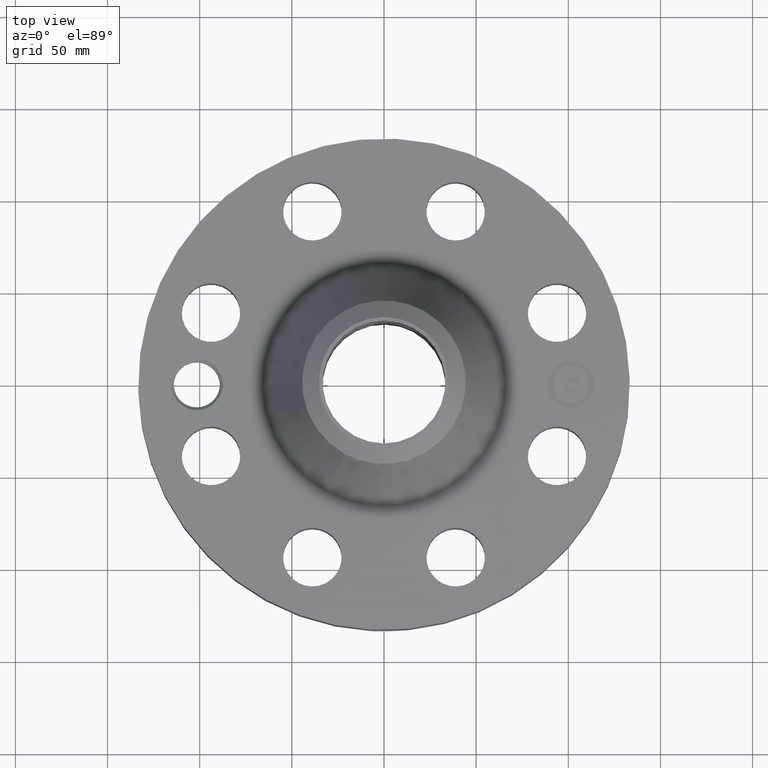
[diagram: clean part render]
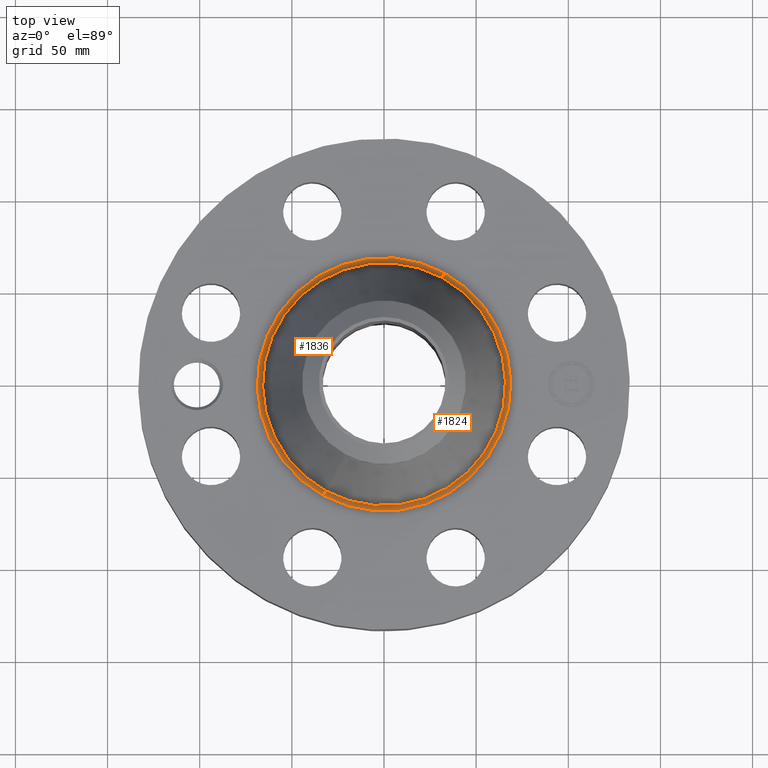
[diagram: same view with one multi-face feature highlighted, each face labeled with its STEP entity id]
A machine part, top view. The highlighted faces form ONE feature: a constant-radius fillet chain: 2 tangent blend faces with common blend radius 3.048 mm. The faces share edges in the B-rep.
Their STEP definitions:
[1] entity #1824 (Torus):
#582=AXIS2_PLACEMENT_3D('Circle Axis2P3D',#580,#581,$) ;
#1797=AXIS2_PLACEMENT_3D('Torus Axis2P3D',#1794,#1795,#1796) ;
#1801=AXIS2_PLACEMENT_3D('Circle Axis2P3D',#1799,#1800,$) ;
#1808=AXIS2_PLACEMENT_3D('Circle Axis2P3D',#1806,#1807,$) ;
#1815=AXIS2_PLACEMENT_3D('Circle Axis2P3D',#1813,#1814,$) ;
#575=CARTESIAN_POINT('Vertex',(-1.29770734833,-2.37543736749,2.13000000001)) ;
#577=CARTESIAN_POINT('Vertex',(1.29770734833,2.37543736749,2.13000000001)) ;
#580=CARTESIAN_POINT('Axis2P3D Location',(0.,0.,2.13000000001)) ;
#1794=CARTESIAN_POINT('Axis2P3D Location',(0.,0.,2.25000000001)) ;
#1799=CARTESIAN_POINT('Axis2P3D Location',(1.29770734833,2.37543736749,2.25000000001)) ;
#1803=CARTESIAN_POINT('Vertex',(1.24415753478,2.27741509129,2.20613599613)) ;
#1806=CARTESIAN_POINT('Axis2P3D Location',(0.,0.,2.20613599613)) ;
#1810=CARTESIAN_POINT('Vertex',(-1.24415753478,-2.27741509129,2.20613599613)) ;
#1813=CARTESIAN_POINT('Axis2P3D Location',(-1.29770734833,-2.37543736749,2.25000000001)) ;
#581=DIRECTION('Axis2P3D Direction',(0.,0.,-0.0393700787402)) ;
#1795=DIRECTION('Axis2P3D Direction',(0.,0.,-0.0393700787402)) ;
#1796=DIRECTION('Axis2P3D XDirection',(-0.0188750212049,-0.0345504945626,0.)) ;
#1800=DIRECTION('Axis2P3D Direction',(-0.0345504945626,0.0188750212049,0.)) ;
#1807=DIRECTION('Axis2P3D Direction',(0.,0.,-0.0393700787402)) ;
#1814=DIRECTION('Axis2P3D Direction',(0.0345504945626,-0.0188750212049,0.)) ;
#1819=ORIENTED_EDGE('',*,*,#584,.F.) ;
#1820=ORIENTED_EDGE('',*,*,#1805,.T.) ;
#1821=ORIENTED_EDGE('',*,*,#1812,.T.) ;
#1822=ORIENTED_EDGE('',*,*,#1817,.F.) ;
#1824=ADVANCED_FACE('PartBody',(#1823),#1798,.F.) ;
#583=CIRCLE('generated circle',#582,2.706796455) ;
#1802=CIRCLE('generated circle',#1801,0.12) ;
#1809=CIRCLE('generated circle',#1808,2.59510066652) ;
#1816=CIRCLE('generated circle',#1815,0.12) ;
#1798=TOROIDAL_SURFACE('homeo Torus',#1797,2.706796455,0.12) ;
#584=EDGE_CURVE('',#578,#576,#583,.T.) ;
#1805=EDGE_CURVE('',#578,#1804,#1802,.T.) ;
#1812=EDGE_CURVE('',#1804,#1811,#1809,.T.) ;
#1817=EDGE_CURVE('',#576,#1811,#1816,.T.) ;
#1818=EDGE_LOOP('',(#1819,#1820,#1821,#1822)) ;
#1823=FACE_OUTER_BOUND('',#1818,.T.) ;
#576=VERTEX_POINT('',#575) ;
#578=VERTEX_POINT('',#577) ;
#1804=VERTEX_POINT('',#1803) ;
#1811=VERTEX_POINT('',#1810) ;
[2] entity #1836 (Torus):
#573=AXIS2_PLACEMENT_3D('Circle Axis2P3D',#571,#572,$) ;
#1797=AXIS2_PLACEMENT_3D('Torus Axis2P3D',#1794,#1795,#1796) ;
#1801=AXIS2_PLACEMENT_3D('Circle Axis2P3D',#1799,#1800,$) ;
#1815=AXIS2_PLACEMENT_3D('Circle Axis2P3D',#1813,#1814,$) ;
#1827=AXIS2_PLACEMENT_3D('Circle Axis2P3D',#1825,#1826,$) ;
#571=CARTESIAN_POINT('Axis2P3D Location',(0.,0.,2.13000000001)) ;
#575=CARTESIAN_POINT('Vertex',(-1.29770734833,-2.37543736749,2.13000000001)) ;
#577=CARTESIAN_POINT('Vertex',(1.29770734833,2.37543736749,2.13000000001)) ;
#1794=CARTESIAN_POINT('Axis2P3D Location',(0.,0.,2.25000000001)) ;
#1799=CARTESIAN_POINT('Axis2P3D Location',(1.29770734833,2.37543736749,2.25000000001)) ;
#1803=CARTESIAN_POINT('Vertex',(1.24415753478,2.27741509129,2.20613599613)) ;
#1810=CARTESIAN_POINT('Vertex',(-1.24415753478,-2.27741509129,2.20613599613)) ;
#1813=CARTESIAN_POINT('Axis2P3D Location',(-1.29770734833,-2.37543736749,2.25000000001)) ;
#1825=CARTESIAN_POINT('Axis2P3D Location',(0.,0.,2.20613599613)) ;
#572=DIRECTION('Axis2P3D Direction',(0.,0.,-0.0393700787402)) ;
#1795=DIRECTION('Axis2P3D Direction',(0.,0.,-0.0393700787402)) ;
#1796=DIRECTION('Axis2P3D XDirection',(-0.0188750212049,-0.0345504945626,0.)) ;
#1800=DIRECTION('Axis2P3D Direction',(-0.0345504945626,0.0188750212049,0.)) ;
#1814=DIRECTION('Axis2P3D Direction',(0.0345504945626,-0.0188750212049,0.)) ;
#1826=DIRECTION('Axis2P3D Direction',(0.,0.,-0.0393700787402)) ;
#1831=ORIENTED_EDGE('',*,*,#579,.F.) ;
#1832=ORIENTED_EDGE('',*,*,#1817,.T.) ;
#1833=ORIENTED_EDGE('',*,*,#1829,.T.) ;
#1834=ORIENTED_EDGE('',*,*,#1805,.F.) ;
#1836=ADVANCED_FACE('PartBody',(#1835),#1798,.F.) ;
#574=CIRCLE('generated circle',#573,2.706796455) ;
#1802=CIRCLE('generated circle',#1801,0.12) ;
#1816=CIRCLE('generated circle',#1815,0.12) ;
#1828=CIRCLE('generated circle',#1827,2.59510066652) ;
#1798=TOROIDAL_SURFACE('homeo Torus',#1797,2.706796455,0.12) ;
#579=EDGE_CURVE('',#576,#578,#574,.T.) ;
#1805=EDGE_CURVE('',#578,#1804,#1802,.T.) ;
#1817=EDGE_CURVE('',#576,#1811,#1816,.T.) ;
#1829=EDGE_CURVE('',#1811,#1804,#1828,.T.) ;
#1830=EDGE_LOOP('',(#1831,#1832,#1833,#1834)) ;
#1835=FACE_OUTER_BOUND('',#1830,.T.) ;
#576=VERTEX_POINT('',#575) ;
#578=VERTEX_POINT('',#577) ;
#1804=VERTEX_POINT('',#1803) ;
#1811=VERTEX_POINT('',#1810) ;